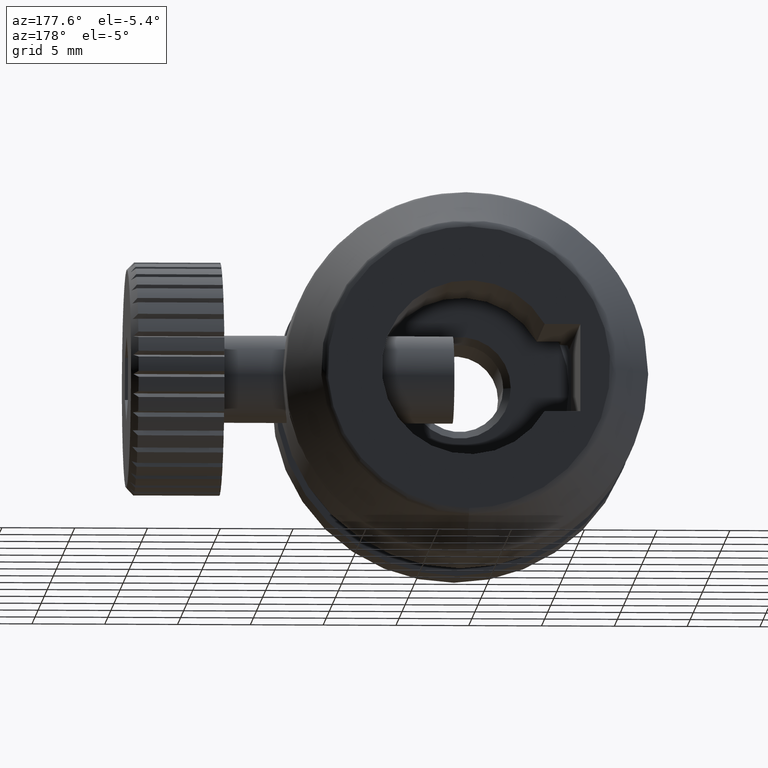
[diagram: clean part render]
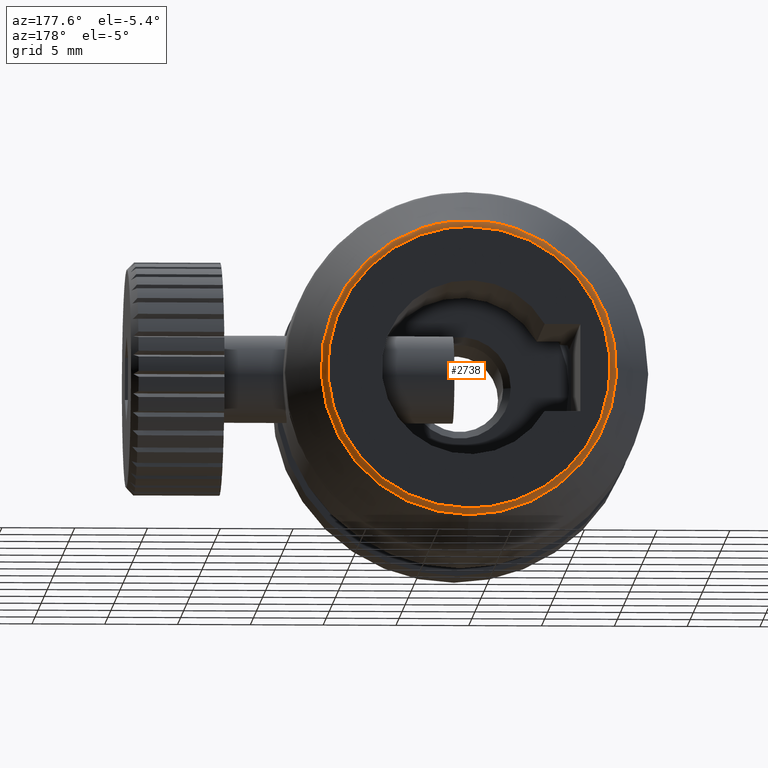
[diagram: same view with one face highlighted and labeled with its STEP entity id]
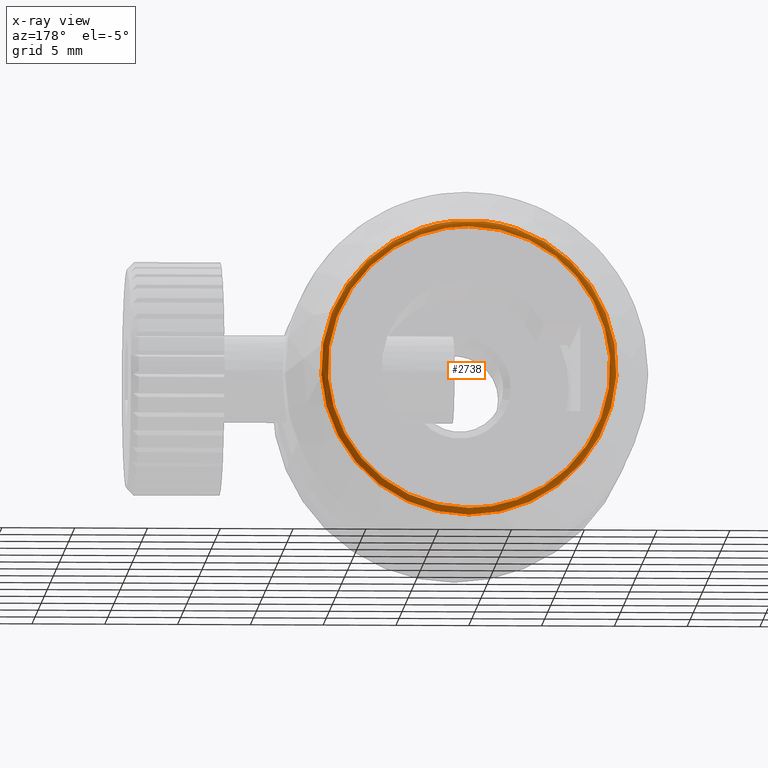
[diagram: x-ray of the same camera — body ghosted, the highlighted face saturated]
A machine part, auxiliary view. The second image highlights one B-rep face of the part: STEP entity #2738.
The next image is the same camera in x-ray: the body ghosted, the highlighted face saturated — about 0% of this face is hidden behind the body in this view.
In plain terms, the highlighted face is a freeform B-spline surface patch.
Its self-contained STEP definition (entity closure, byte-faithful):
#12 = CARTESIAN_POINT ( 'NONE',  ( 16.41326963185770182, 13.18638794039016560, 8.574144048315305966 ) ) ;
#67 = CARTESIAN_POINT ( 'NONE',  ( 17.28742690797924197, 12.92920940597947421, 9.011222686376074265 ) ) ;
#144 = CARTESIAN_POINT ( 'NONE',  ( 17.10658524714170170, 13.09196690073326685, -11.18411041032812925 ) ) ;
#163 =( BOUNDED_CURVE ( )  B_SPLINE_CURVE ( 3, ( #183, #3337, #1378, #1902 ),
 .UNSPECIFIED., .F., .F. ) 
 B_SPLINE_CURVE_WITH_KNOTS ( ( 4, 4 ),
 ( 0.000000000000000000, 1.000000000000000000 ),
 .UNSPECIFIED. ) 
 CURVE ( )  GEOMETRIC_REPRESENTATION_ITEM ( )  RATIONAL_B_SPLINE_CURVE ( ( 1.000000000000000000, 0.3333333333333333703, 0.3333333333333333703, 1.000000000000000000 ) ) 
 REPRESENTATION_ITEM ( '' )  );
#183 = CARTESIAN_POINT ( 'NONE',  ( -2.998327019143730343, 13.18638794039016560, 8.574144048315302413 ) ) ;
#262 = DIRECTION ( 'NONE',  ( 0.000000000000000000, -1.000000000000000000, 0.000000000000000000 ) ) ;
#275 = EDGE_CURVE ( 'NONE', #3309, #901, #1219, .T. ) ;
#528 = CARTESIAN_POINT ( 'NONE',  ( -2.998327019143730343, 13.18638794039016382, 8.760331933721824171 ) ) ;
#544 = CARTESIAN_POINT ( 'NONE',  ( -2.998327019143730343, 13.18638794039016560, 8.574144048315302413 ) ) ;
#556 = CARTESIAN_POINT ( 'NONE',  ( -2.998327019143730343, 13.18638794039016382, -11.02364048809264752 ) ) ;
#785 = CARTESIAN_POINT ( 'NONE',  ( -2.998327019143730343, 13.18638794039016560, 8.574144048315302413 ) ) ;
#869 = CARTESIAN_POINT ( 'NONE',  ( 16.41326963185769827, 13.18638794039016382, -10.83745260268612931 ) ) ;
#901 = VERTEX_POINT ( 'NONE', #544 ) ;
#949 = CARTESIAN_POINT ( 'NONE',  ( -2.998327019143730343, 13.09196690073327041, 8.920801855957307680 ) ) ;
#1135 = CARTESIAN_POINT ( 'NONE',  ( 16.41326963185770182, 13.18638794039016560, -10.83745260268612931 ) ) ;
#1187 = ORIENTED_EDGE ( 'NONE', *, *, #275, .T. ) ;
#1219 =( BOUNDED_CURVE ( )  B_SPLINE_CURVE ( 3, ( #3142, #1135, #12, #785 ),
 .UNSPECIFIED., .F., .T. ) 
 B_SPLINE_CURVE_WITH_KNOTS ( ( 4, 4 ),
 ( 0.000000000000000000, 1.000000000000000000 ),
 .UNSPECIFIED. ) 
 CURVE ( )  GEOMETRIC_REPRESENTATION_ITEM ( )  RATIONAL_B_SPLINE_CURVE ( ( 1.000000000000000000, 0.3333333333333333703, 0.3333333333333333703, 1.000000000000000000 ) ) 
 REPRESENTATION_ITEM ( '' )  );
#1314 = CARTESIAN_POINT ( 'NONE',  ( -2.998327019143730343, 13.18638794039016382, 8.574144048315302413 ) ) ;
#1339 = CARTESIAN_POINT ( 'NONE',  ( -22.40992367014516162, 13.18638794039016382, 8.574144048315302413 ) ) ;
#1378 = CARTESIAN_POINT ( 'NONE',  ( -22.40992367014515807, 13.18638794039016560, -10.83745260268612931 ) ) ;
#1465 = CARTESIAN_POINT ( 'NONE',  ( -2.998327019143730343, 12.92920940597947599, 9.011222686376072488 ) ) ;
#1640 = CARTESIAN_POINT ( 'NONE',  ( -2.998327019143730343, 13.18638794039016382, 8.574144048315302413 ) ) ;
#1738 = CARTESIAN_POINT ( 'NONE',  ( -2.998327019143730343, 13.18638794039016382, 8.760331933721824171 ) ) ;
#1902 = CARTESIAN_POINT ( 'NONE',  ( -2.998327019143729011, 13.18638794039016560, -10.83745260268613109 ) ) ;
#2101 = CARTESIAN_POINT ( 'NONE',  ( -2.998327019143730343, 13.09196690073327041, 8.920801855957307680 ) ) ;
#2130 = CARTESIAN_POINT ( 'NONE',  ( -2.998327019143730343, 12.92920940597947599, 9.011222686376072488 ) ) ;
#2169 = DIRECTION ( 'NONE',  ( 0.000000000000000000, 0.000000000000000000, -1.000000000000000000 ) ) ;
#2205 = AXIS2_PLACEMENT_3D ( 'NONE', #4593, #262, #2169 ) ;
#2207 = CARTESIAN_POINT ( 'NONE',  ( -23.28408094626670177, 12.92920940597947421, -11.27453124074690116 ) ) ;
#2213 = EDGE_CURVE ( 'NONE', #3683, #3683, #4537, .T. ) ;
#2358 = ORIENTED_EDGE ( 'NONE', *, *, #2213, .F. ) ;
#2438 =( BOUNDED_SURFACE ( )  B_SPLINE_SURFACE ( 3, 3, ( 
 ( #1314, #4136, #869, #4480, #2498, #1339, #1640 ),
 ( #1738, #4081, #4426, #556, #4892, #4110, #528 ),
 ( #2101, #3689, #144, #4504, #3324, #4920, #949 ),
 ( #2130, #67, #3221, #3718, #2207, #3349, #1465 ) ),
 .UNSPECIFIED., .F., .T., .F. ) 
 B_SPLINE_SURFACE_WITH_KNOTS ( ( 4, 4 ),
 ( 4, 3, 4 ),
 ( 0.000000000000000000, 1.000000000000000000 ),
 ( 0.000000000000000000, 0.5000000000000000000, 1.000000000000000000 ),
 .UNSPECIFIED. ) 
 GEOMETRIC_REPRESENTATION_ITEM ( )  RATIONAL_B_SPLINE_SURFACE ( (
 ( 1.000000000000000000, 0.3333333333333333148, 0.3333333333333333148, 1.000000000000000000, 0.3333333333333333148, 0.3333333333333333148, 1.000000000000000000),
 ( 0.9079139400329069298, 0.3026379800109689766, 0.3026379800109689766, 0.9079139400329069298, 0.3026379800109689766, 0.3026379800109689766, 0.9079139400329069298),
 ( 0.9079139400329069298, 0.3026379800109689766, 0.3026379800109689766, 0.9079139400329069298, 0.3026379800109689766, 0.3026379800109689766, 0.9079139400329069298),
 ( 1.000000000000000000, 0.3333333333333333148, 0.3333333333333333148, 1.000000000000000000, 0.3333333333333333148, 0.3333333333333333148, 1.000000000000000000) ) ) 
 REPRESENTATION_ITEM ( '' )  SURFACE ( )  );
#2498 = CARTESIAN_POINT ( 'NONE',  ( -22.40992367014516162, 13.18638794039016382, -10.83745260268612931 ) ) ;
#2552 = FACE_OUTER_BOUND ( 'NONE', #4113, .T. ) ;
#2738 = ADVANCED_FACE ( 'NONE', ( #2864, #2552 ), #2438, .T. ) ;
#2864 = FACE_OUTER_BOUND ( 'NONE', #4199, .T. ) ;
#3142 = CARTESIAN_POINT ( 'NONE',  ( -2.998327019143729011, 13.18638794039016560, -10.83745260268613109 ) ) ;
#3221 = CARTESIAN_POINT ( 'NONE',  ( 17.28742690797924197, 12.92920940597947421, -11.27453124074690116 ) ) ;
#3309 = VERTEX_POINT ( 'NONE', #5064 ) ;
#3324 = CARTESIAN_POINT ( 'NONE',  ( -23.10323928542916150, 13.09196690073326685, -11.18411041032812925 ) ) ;
#3337 = CARTESIAN_POINT ( 'NONE',  ( -22.40992367014515807, 13.18638794039016560, 8.574144048315302413 ) ) ;
#3349 = CARTESIAN_POINT ( 'NONE',  ( -23.28408094626670177, 12.92920940597947421, 9.011222686376074265 ) ) ;
#3683 = VERTEX_POINT ( 'NONE', #4890 ) ;
#3687 = EDGE_CURVE ( 'NONE', #901, #3309, #163, .T. ) ;
#3689 = CARTESIAN_POINT ( 'NONE',  ( 17.10658524714170170, 13.09196690073326685, 8.920801855957302351 ) ) ;
#3718 = CARTESIAN_POINT ( 'NONE',  ( -2.998327019143730343, 12.92920940597947599, -11.27453124074690116 ) ) ;
#3983 = ORIENTED_EDGE ( 'NONE', *, *, #3687, .T. ) ;
#4081 = CARTESIAN_POINT ( 'NONE',  ( 16.78564540267074179, 13.18638794039016382, 8.760331933721820619 ) ) ;
#4110 = CARTESIAN_POINT ( 'NONE',  ( -22.78229944095820159, 13.18638794039016382, 8.760331933721820619 ) ) ;
#4113 = EDGE_LOOP ( 'NONE', ( #3983, #1187 ) ) ;
#4136 = CARTESIAN_POINT ( 'NONE',  ( 16.41326963185769827, 13.18638794039016382, 8.574144048315302413 ) ) ;
#4199 = EDGE_LOOP ( 'NONE', ( #2358 ) ) ;
#4426 = CARTESIAN_POINT ( 'NONE',  ( 16.78564540267074179, 13.18638794039016382, -11.02364048809264752 ) ) ;
#4480 = CARTESIAN_POINT ( 'NONE',  ( -2.998327019143730343, 13.18638794039016382, -10.83745260268612931 ) ) ;
#4504 = CARTESIAN_POINT ( 'NONE',  ( -2.998327019143730343, 13.09196690073327041, -11.18411041032812925 ) ) ;
#4537 = CIRCLE ( 'NONE', #2205, 10.14287696356148594 ) ;
#4593 = CARTESIAN_POINT ( 'NONE',  ( -2.998327019143730343, 12.92920940597947599, -1.131654277185413671 ) ) ;
#4890 = CARTESIAN_POINT ( 'NONE',  ( -2.998327019143730343, 12.92920940597947599, -11.27453124074689939 ) ) ;
#4892 = CARTESIAN_POINT ( 'NONE',  ( -22.78229944095820159, 13.18638794039016382, -11.02364048809264752 ) ) ;
#4920 = CARTESIAN_POINT ( 'NONE',  ( -23.10323928542916150, 13.09196690073326685, 8.920801855957302351 ) ) ;
#5064 = CARTESIAN_POINT ( 'NONE',  ( -2.998327019143729011, 13.18638794039016560, -10.83745260268613109 ) ) ;